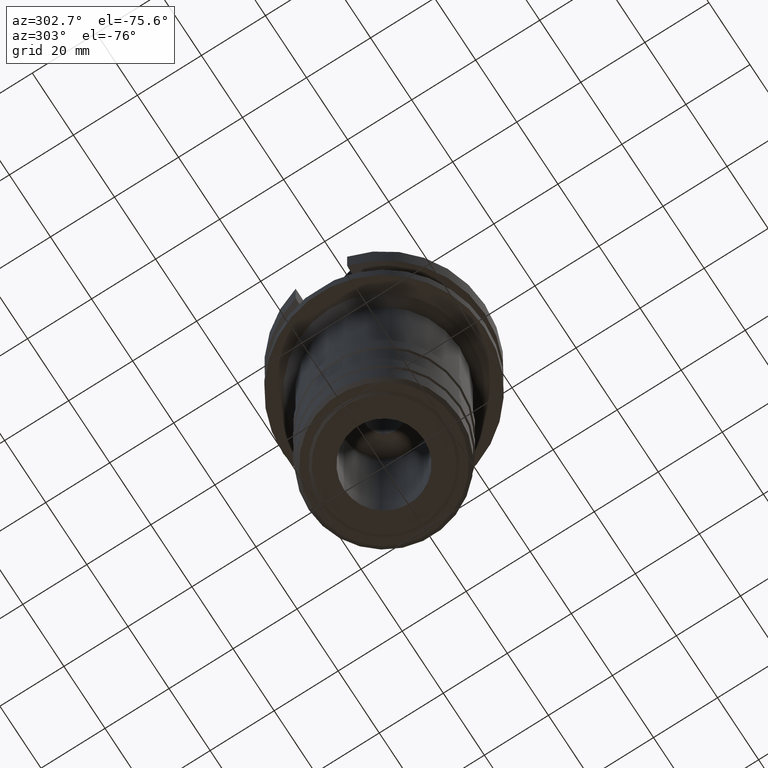
[diagram: clean part render]
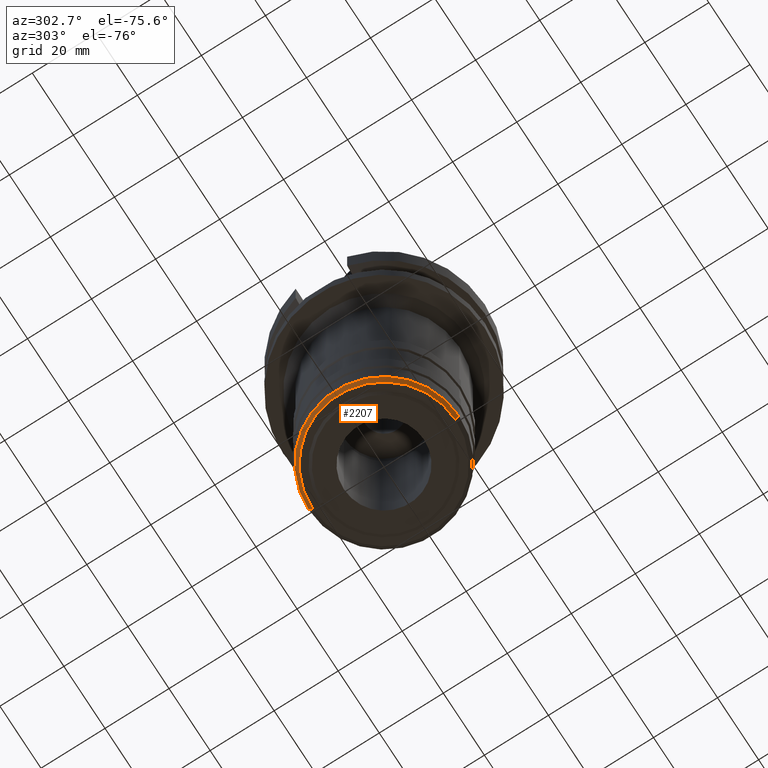
[diagram: same view with one face highlighted and labeled with its STEP entity id]
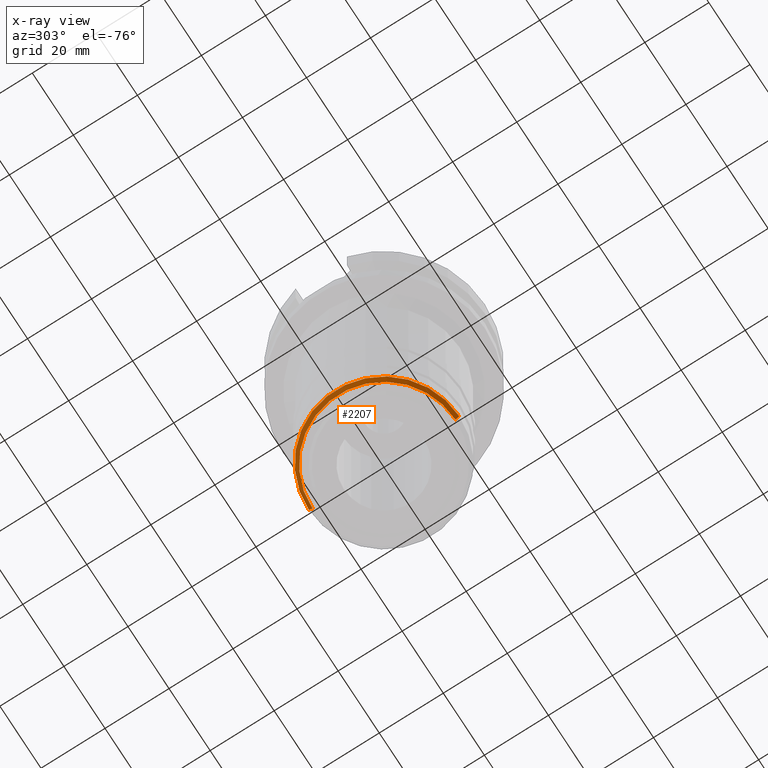
[diagram: x-ray of the same camera — body ghosted, the highlighted face saturated]
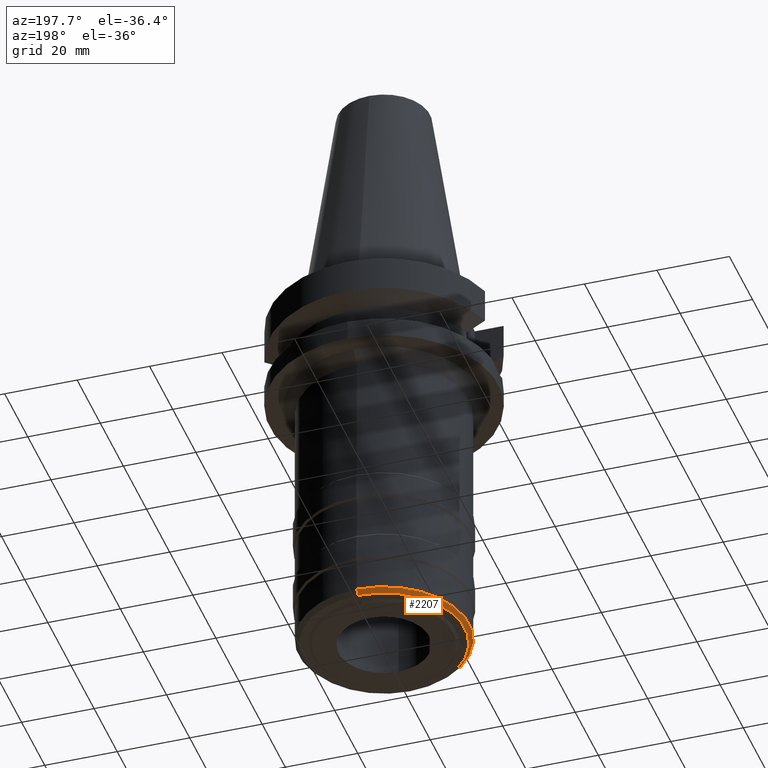
[diagram: same view with one face highlighted and labeled with its STEP entity id]
A machine part, auxiliary view. The second image highlights one B-rep face of the part: STEP entity #2207.
The next image is the same camera in x-ray: the body ghosted, the highlighted face saturated — about 0% of this face is hidden behind the body in this view.
A second angle (auxiliary view) of the same face is appended — the face is thin or edge-on in the first view.
In plain terms, the highlighted conical surface has half-angle 45 deg.
Its self-contained STEP definition (entity closure, byte-faithful):
#945=CARTESIAN_POINT('',(0.E0,0.E0,-1.033285E2));
#946=DIRECTION('',(0.E0,0.E0,1.E0));
#947=DIRECTION('',(0.E0,1.E0,0.E0));
#948=AXIS2_PLACEMENT_3D('',#945,#946,#947);
#953=DIRECTION('',(0.E0,7.071067811866E-1,-7.071067811865E-1));
#954=VECTOR('',#953,1.656751188320E0);
#955=CARTESIAN_POINT('',(0.E0,-2.35E1,-1.033285E2));
#956=LINE('',#955,#954);
#960=DIRECTION('',(0.E0,-7.071067811866E-1,-7.071067811865E-1));
#961=VECTOR('',#960,1.656751188320E0);
#962=CARTESIAN_POINT('',(0.E0,2.35E1,-1.033285E2));
#963=LINE('',#962,#961);
#983=CARTESIAN_POINT('',(0.E0,0.E0,-1.045E2));
#984=DIRECTION('',(0.E0,0.E0,1.E0));
#985=DIRECTION('',(0.E0,1.E0,0.E0));
#986=AXIS2_PLACEMENT_3D('',#983,#984,#985);
#1337=CARTESIAN_POINT('',(0.E0,-2.23285E1,-1.045E2));
#1338=CARTESIAN_POINT('',(0.E0,2.23285E1,-1.045E2));
#1339=VERTEX_POINT('',#1337);
#1340=VERTEX_POINT('',#1338);
#1341=CARTESIAN_POINT('',(0.E0,2.35E1,-1.033285E2));
#1342=VERTEX_POINT('',#1341);
#1343=CARTESIAN_POINT('',(0.E0,-2.35E1,-1.033285E2));
#1344=VERTEX_POINT('',#1343);
#2193=CARTESIAN_POINT('',(0.E0,0.E0,-1.0391425E2));
#2194=DIRECTION('',(0.E0,0.E0,1.E0));
#2195=DIRECTION('',(0.E0,1.E0,0.E0));
#2196=AXIS2_PLACEMENT_3D('',#2193,#2194,#2195);
#2197=CONICAL_SURFACE('',#2196,2.291425E1,4.500000000001E1);
#2199=ORIENTED_EDGE('',*,*,#2198,.F.);
#2200=ORIENTED_EDGE('',*,*,#2188,.T.);
#2202=ORIENTED_EDGE('',*,*,#2201,.T.);
#2204=ORIENTED_EDGE('',*,*,#2203,.F.);
#2205=EDGE_LOOP('',(#2199,#2200,#2202,#2204));
#2206=FACE_OUTER_BOUND('',#2205,.F.);
#949=CIRCLE('',#948,2.35E1);
#987=CIRCLE('',#986,2.23285E1);
#2188=EDGE_CURVE('',#1342,#1344,#949,.T.);
#2198=EDGE_CURVE('',#1342,#1340,#963,.T.);
#2201=EDGE_CURVE('',#1344,#1339,#956,.T.);
#2203=EDGE_CURVE('',#1340,#1339,#987,.T.);
#2207=ADVANCED_FACE('',(#2206),#2197,.T.);